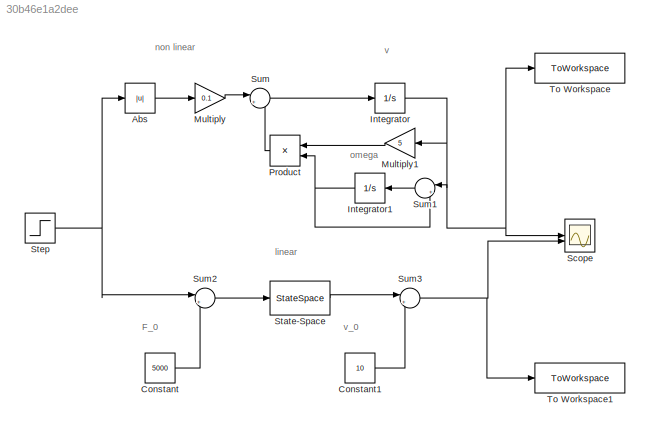
MODEL slx_30b46e1a2dee
KIND model
CONFIG AbsTol = auto
CONFIG EnableMultiTasking = off
CONFIG FixedStep = auto
CONFIG MaxStep = auto
CONFIG MinStep = auto
CONFIG RelTol = 1e-3
CONFIG SampleTimeConstraint = Unconstrained
CONFIG SolverName = VariableStepAuto
CONFIG StartTime = 0.0
CONFIG StopTime = 10.0
BLOCK [Abs] Abs
  SaturateOnIntegerOverflow = off
BLOCK [Constant] Constant
  Value = 5000
BLOCK [Constant] Constant1
  Value = 10
BLOCK [Integrator] Integrator
  InitialCondition = 10
BLOCK [Integrator] Integrator1
  InitialCondition = 10
  NameLocation = top
BLOCK [Gain] Multiply
  Gain = 0.1
BLOCK [Gain] Multiply1
  Gain = 5
  NameLocation = top
BLOCK [Product] Product
  NameLocation = top
BLOCK [Scope] Scope
  Floating = off
  NumInputPorts = 2
  ScopeSpecificationString = Simulink.scopes.TimeScopeBlockCfg('CurrentConfiguration', extmgr.ConfigurationSet(extmgr.Configuration('Core','General UI',true),extmgr.Configuration('Core','Source UI',true),extmgr.Configuration('Sources','WiredSimulink',true),extmgr.Configuration('Visuals','Time Domain',true,'SerializedDisplays',{struct('MinYLimReal','9.99765','MaxYLimReal','10.02116','YLabelReal','','MinYLimMag','9.99765','MaxY...<+1455ch>
BLOCK [StateSpace] State-Space
  A = [-50 -50; 1 -1]
  B = [0.1; 0]
  C = [1 0]
  D = 0
  InitialCondition = 0
BLOCK [Step] Step
  After = 5010
  Before = 5000
  SampleTime = 0
BLOCK [Sum] Sum
  Inputs = |+-
BLOCK [Sum] Sum1
  Inputs = |+-
  NameLocation = top
BLOCK [Sum] Sum2
  Inputs = |+-
BLOCK [Sum] Sum3
  Inputs = |++
BLOCK [ToWorkspace] To Workspace
  FixptAsFi = on
  MaxDataPoints = inf
  SampleTime = -1
  SaveFormat = Timeseries
  VariableName = nonLinear
BLOCK [ToWorkspace] To Workspace1
  FixptAsFi = on
  MaxDataPoints = inf
  SampleTime = -1
  SaveFormat = Timeseries
  VariableName = linear
ANNOTATION (root): F_0
ANNOTATION (root): linear
ANNOTATION (root): non linear
ANNOTATION (root): omega
ANNOTATION (root): v
ANNOTATION (root): v_0
LINE Abs:1 -> Multiply:1
LINE Constant1:1 -> Sum3:2
LINE Constant:1 -> Sum2:2
NET Integrator1:1 -> Product:2, Sum1:2
NET Integrator:1 -> Multiply1:1, Scope:1, Sum1:1, To Workspace:1
LINE Multiply1:1 -> Product:1
LINE Multiply:1 -> Sum:1
LINE Product:1 -> Sum:2
LINE State-Space:1 -> Sum3:1
NET Step:1 -> Abs:1, Sum2:1
LINE Sum1:1 -> Integrator1:1
LINE Sum2:1 -> State-Space:1
NET Sum3:1 -> Scope:2, To Workspace1:1
LINE Sum:1 -> Integrator:1
note: NET lines group one-source signal fan-out (src -> all destinations, sorted); 1:1 wires keep LINE
